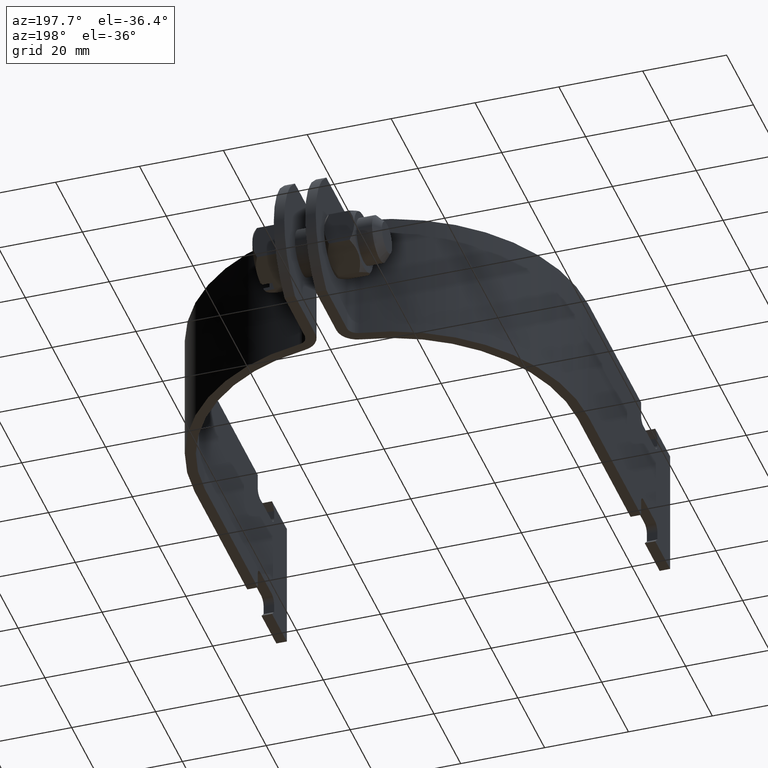
[diagram: clean part render]
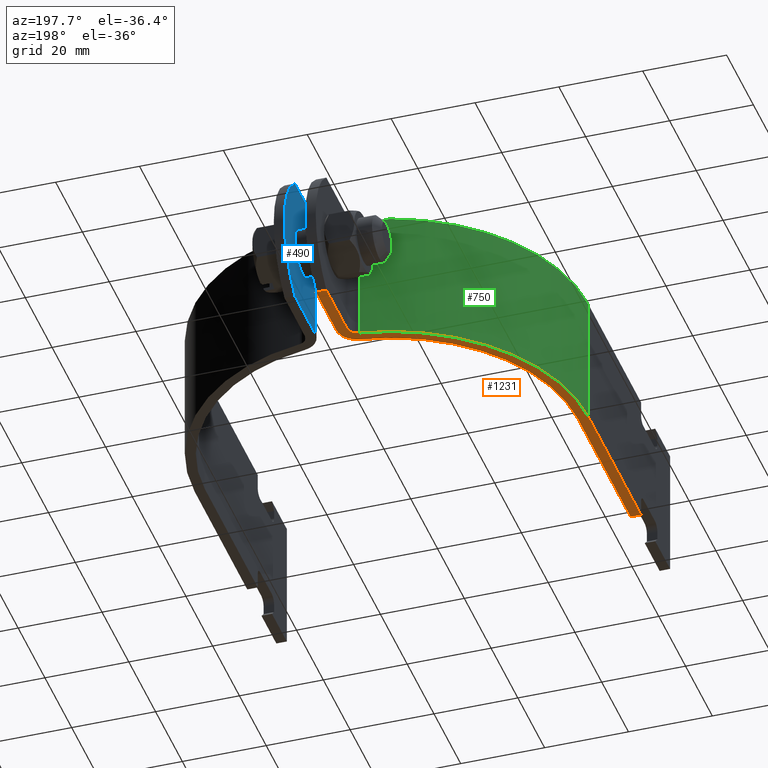
[diagram: same view with three faces highlighted in distinct colors, each labeled with its STEP entity id]
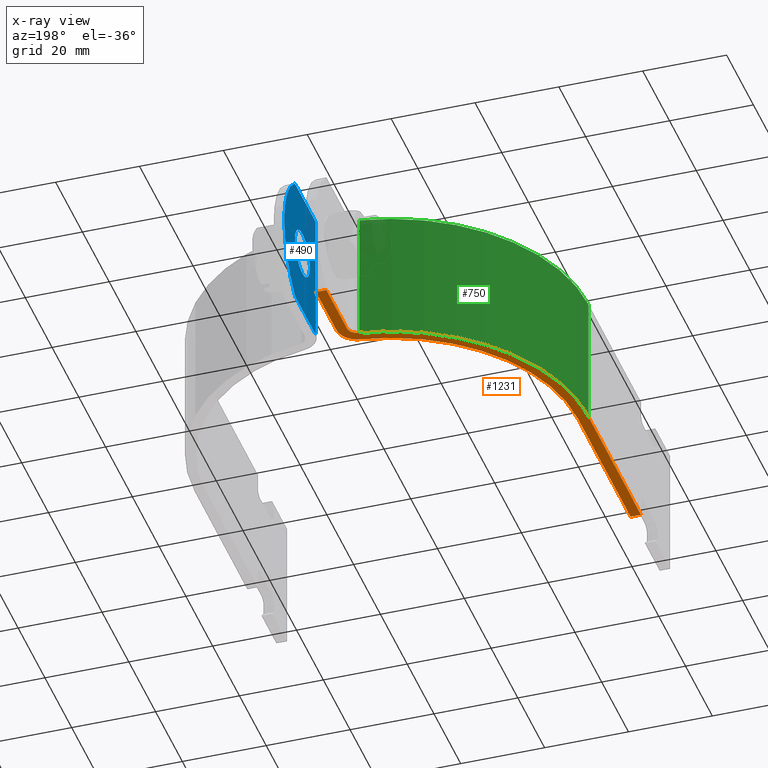
[diagram: x-ray of the same camera — body ghosted, the three highlighted faces saturated]
A machine part, auxiliary view with three faces highlighted in distinct colors.
The next image is the same camera in x-ray (body ghosted, the three faces saturated) — at least one of them is partly hidden behind the body in this view.
Their STEP definitions:

[orange] entity #1231 — the highlighted planar face has unit normal (0, 0, 1).
#61 = CIRCLE ( 'NONE', #1762, 44.45000000000001705 ) ;
#80 = DIRECTION ( 'NONE',  ( 0.000000000000000000, 0.000000000000000000, 1.000000000000000000 ) ) ;
#105 = ORIENTED_EDGE ( 'NONE', *, *, #3729, .T. ) ;
#305 = VERTEX_POINT ( 'NONE', #1012 ) ;
#334 = CARTESIAN_POINT ( 'NONE',  ( -4.999999999999996447, 41.12040011781590465, -15.87500000000000000 ) ) ;
#379 = ORIENTED_EDGE ( 'NONE', *, *, #566, .F. ) ;
#424 = EDGE_CURVE ( 'NONE', #579, #2093, #61, .T. ) ;
#468 = DIRECTION ( 'NONE',  ( 2.023784734719105571E-16, 1.000000000000000000, 0.000000000000000000 ) ) ;
#495 = DIRECTION ( 'NONE',  ( 0.000000000000000000, 0.000000000000000000, 1.000000000000000000 ) ) ;
#501 = VERTEX_POINT ( 'NONE', #2962 ) ;
#522 = ORIENTED_EDGE ( 'NONE', *, *, #2594, .T. ) ;
#566 = EDGE_CURVE ( 'NONE', #501, #1038, #2749, .T. ) ;
#579 = VERTEX_POINT ( 'NONE', #1669 ) ;
#600 = PLANE ( 'NONE',  #1516 ) ;
#651 = ORIENTED_EDGE ( 'NONE', *, *, #2331, .T. ) ;
#660 = ORIENTED_EDGE ( 'NONE', *, *, #3186, .F. ) ;
#702 = ORIENTED_EDGE ( 'NONE', *, *, #1547, .F. ) ;
#720 = AXIS2_PLACEMENT_3D ( 'NONE', #2577, #80, #1810 ) ;
#728 = CARTESIAN_POINT ( 'NONE',  ( -46.94999999999998153, -44.95799999999999130, -15.87500000000002842 ) ) ;
#804 = DIRECTION ( 'NONE',  ( 1.000000000000000000, 0.000000000000000000, 0.000000000000000000 ) ) ;
#817 = DIRECTION ( 'NONE',  ( 1.135431418813077006E-16, -1.000000000000000000, -0.000000000000000000 ) ) ;
#927 = CARTESIAN_POINT ( 'NONE',  ( -2.500000000000004885, 43.31533469450197771, -15.87500000000000000 ) ) ;
#930 = DIRECTION ( 'NONE',  ( 3.406294256439230771E-16, 1.000000000000000000, 0.000000000000000000 ) ) ;
#956 = EDGE_CURVE ( 'NONE', #2503, #305, #2741, .T. ) ;
#1012 = CARTESIAN_POINT ( 'NONE',  ( -2.500000000000001776, 58.73749999999996874, -15.87500000000000000 ) ) ;
#1018 = VECTOR ( 'NONE', #930, 1000.000000000000000 ) ;
#1023 = CIRCLE ( 'NONE', #720, 2.499999999999999556 ) ;
#1038 = VERTEX_POINT ( 'NONE', #3400 ) ;
#1056 = EDGE_CURVE ( 'NONE', #1038, #3380, #2332, .T. ) ;
#1085 = CIRCLE ( 'NONE', #1690, 5.000000000000000000 ) ;
#1095 = CARTESIAN_POINT ( 'NONE',  ( -46.94999999999997442, -66.67499999999999716, -15.87500000000000000 ) ) ;
#1128 = DIRECTION ( 'NONE',  ( 1.000000000000000000, 0.000000000000000000, 0.000000000000000000 ) ) ;
#1213 = CARTESIAN_POINT ( 'NONE',  ( -44.45000000000000284, -44.95799999999999130, -15.87500000000002842 ) ) ;
#1231 = ADVANCED_FACE ( 'NONE', ( #2408 ), #600, .F. ) ;
#1285 = VECTOR ( 'NONE', #817, 1000.000000000000000 ) ;
#1291 = CARTESIAN_POINT ( 'NONE',  ( 2.081668171172168198E-14, -5.562600000000000655, -15.87500000000000000 ) ) ;
#1326 = CARTESIAN_POINT ( 'NONE',  ( 2.081668171172168198E-14, -5.562600000000000655, -15.87500000000000000 ) ) ;
#1476 = VERTEX_POINT ( 'NONE', #1961 ) ;
#1480 = CARTESIAN_POINT ( 'NONE',  ( 2.081668171172168198E-14, -5.562600000000000655, -15.87500000000000000 ) ) ;
#1516 = AXIS2_PLACEMENT_3D ( 'NONE', #1480, #3014, #2701 ) ;
#1547 = EDGE_CURVE ( 'NONE', #1476, #3090, #2910, .T. ) ;
#1613 = ORIENTED_EDGE ( 'NONE', *, *, #956, .F. ) ;
#1669 = CARTESIAN_POINT ( 'NONE',  ( -44.44999999999999574, -5.562600000000000655, -15.87500000000000000 ) ) ;
#1690 = AXIS2_PLACEMENT_3D ( 'NONE', #2587, #3767, #1128 ) ;
#1762 = AXIS2_PLACEMENT_3D ( 'NONE', #1291, #2691, #2747 ) ;
#1763 = VERTEX_POINT ( 'NONE', #1213 ) ;
#1778 = CARTESIAN_POINT ( 'NONE',  ( -6.741658240647121936, 38.37317749586680549, -15.87500000000000000 ) ) ;
#1810 = DIRECTION ( 'NONE',  ( 1.000000000000000000, 0.000000000000000000, 0.000000000000000000 ) ) ;
#1961 = CARTESIAN_POINT ( 'NONE',  ( -4.999999999999997335, 58.73749999999996874, -15.87499999999999645 ) ) ;
#1986 = LINE ( 'NONE', #2276, #2426 ) ;
#2054 = VECTOR ( 'NONE', #3660, 1000.000000000000000 ) ;
#2093 = VERTEX_POINT ( 'NONE', #1778 ) ;
#2095 = EDGE_CURVE ( 'NONE', #1763, #579, #3554, .T. ) ;
#2276 = CARTESIAN_POINT ( 'NONE',  ( -46.94999999999998153, 58.73749999999996874, -15.87500000000000000 ) ) ;
#2331 = EDGE_CURVE ( 'NONE', #1476, #305, #1986, .T. ) ;
#2332 = LINE ( 'NONE', #1095, #1285 ) ;
#2384 = VECTOR ( 'NONE', #2929, 1000.000000000000000 ) ;
#2408 = FACE_OUTER_BOUND ( 'NONE', #3556, .T. ) ;
#2418 = ORIENTED_EDGE ( 'NONE', *, *, #2095, .F. ) ;
#2426 = VECTOR ( 'NONE', #3167, 1000.000000000000000 ) ;
#2503 = VERTEX_POINT ( 'NONE', #927 ) ;
#2577 = CARTESIAN_POINT ( 'NONE',  ( -7.499999999999997335, 43.31533469450197771, -15.87500000000000000 ) ) ;
#2587 = CARTESIAN_POINT ( 'NONE',  ( -7.500000000000005329, 43.31533469450197771, -15.87500000000000000 ) ) ;
#2594 = EDGE_CURVE ( 'NONE', #2503, #2093, #1085, .T. ) ;
#2620 = CARTESIAN_POINT ( 'NONE',  ( -4.999999999999996447, 43.31533469450197771, -15.87500000000000000 ) ) ;
#2691 = DIRECTION ( 'NONE',  ( -0.000000000000000000, -0.000000000000000000, -1.000000000000000000 ) ) ;
#2701 = DIRECTION ( 'NONE',  ( 1.000000000000000000, 0.000000000000000000, -0.000000000000000000 ) ) ;
#2732 = ORIENTED_EDGE ( 'NONE', *, *, #424, .F. ) ;
#2741 = LINE ( 'NONE', #3053, #3063 ) ;
#2747 = DIRECTION ( 'NONE',  ( 1.000000000000000000, 0.000000000000000000, 0.000000000000000000 ) ) ;
#2749 = CIRCLE ( 'NONE', #2935, 46.95000000000000284 ) ;
#2910 = LINE ( 'NONE', #334, #2384 ) ;
#2929 = DIRECTION ( 'NONE',  ( 1.357660447805488629E-16, -1.000000000000000000, -0.000000000000000000 ) ) ;
#2935 = AXIS2_PLACEMENT_3D ( 'NONE', #1326, #495, #804 ) ;
#2962 = CARTESIAN_POINT ( 'NONE',  ( -7.120829120323556971, 40.84425609518439160, -15.87500000000000000 ) ) ;
#3014 = DIRECTION ( 'NONE',  ( 0.000000000000000000, 0.000000000000000000, 1.000000000000000000 ) ) ;
#3053 = CARTESIAN_POINT ( 'NONE',  ( -2.500000000000005773, 38.81704060242040555, -15.87500000000000000 ) ) ;
#3063 = VECTOR ( 'NONE', #468, 1000.000000000000000 ) ;
#3090 = VERTEX_POINT ( 'NONE', #2620 ) ;
#3097 = ORIENTED_EDGE ( 'NONE', *, *, #1056, .F. ) ;
#3167 = DIRECTION ( 'NONE',  ( 1.000000000000000000, -0.000000000000000000, -0.000000000000000000 ) ) ;
#3186 = EDGE_CURVE ( 'NONE', #3380, #1763, #3623, .T. ) ;
#3304 = CARTESIAN_POINT ( 'NONE',  ( -44.45000000000001705, -66.67499999999999716, -15.87500000000000000 ) ) ;
#3380 = VERTEX_POINT ( 'NONE', #3795 ) ;
#3400 = CARTESIAN_POINT ( 'NONE',  ( -46.94999999999998153, -5.562599999999994438, -15.87500000000000000 ) ) ;
#3554 = LINE ( 'NONE', #3304, #1018 ) ;
#3556 = EDGE_LOOP ( 'NONE', ( #1613, #522, #2732, #2418, #660, #3097, #379, #105, #702, #651 ) ) ;
#3623 = LINE ( 'NONE', #728, #2054 ) ;
#3660 = DIRECTION ( 'NONE',  ( 1.000000000000000000, -0.000000000000000000, -0.000000000000000000 ) ) ;
#3729 = EDGE_CURVE ( 'NONE', #501, #3090, #1023, .T. ) ;
#3767 = DIRECTION ( 'NONE',  ( -0.000000000000000000, -0.000000000000000000, -1.000000000000000000 ) ) ;
#3795 = CARTESIAN_POINT ( 'NONE',  ( -46.94999999999998153, -44.95799999999999130, -15.87500000000002842 ) ) ;

[blue] entity #490 — the highlighted planar face has unit normal (1, -0, 0).
#48 = CIRCLE ( 'NONE', #604, 5.556249999999998579 ) ;
#72 = FACE_BOUND ( 'NONE', #3617, .T. ) ;
#133 = LINE ( 'NONE', #668, #3371 ) ;
#235 = AXIS2_PLACEMENT_3D ( 'NONE', #895, #302, #560 ) ;
#251 = DIRECTION ( 'NONE',  ( 1.000000000000000000, -1.245405990596371389E-16, 0.000000000000000000 ) ) ;
#265 = LINE ( 'NONE', #551, #3236 ) ;
#294 = VERTEX_POINT ( 'NONE', #1036 ) ;
#302 = DIRECTION ( 'NONE',  ( -1.000000000000000000, 1.245405990596371389E-16, -0.000000000000000000 ) ) ;
#381 = CARTESIAN_POINT ( 'NONE',  ( 2.499999999999996447, 38.81704060242037713, 15.87500000000000000 ) ) ;
#436 = CIRCLE ( 'NONE', #3313, 5.556249999999998579 ) ;
#447 = EDGE_CURVE ( 'NONE', #2032, #294, #133, .T. ) ;
#490 = ADVANCED_FACE ( 'NONE', ( #72, #1799 ), #3006, .F. ) ;
#551 = CARTESIAN_POINT ( 'NONE',  ( 2.499999999999996447, 38.81704060242037713, 15.87500000000000000 ) ) ;
#560 = DIRECTION ( 'NONE',  ( 1.311287036958849155E-16, 1.000000000000000000, 0.000000000000000000 ) ) ;
#604 = AXIS2_PLACEMENT_3D ( 'NONE', #755, #3049, #3645 ) ;
#668 = CARTESIAN_POINT ( 'NONE',  ( 2.499999999999996447, 38.81704060242037713, -15.87500000000000000 ) ) ;
#680 = EDGE_CURVE ( 'NONE', #1253, #2146, #265, .T. ) ;
#687 = EDGE_LOOP ( 'NONE', ( #1797, #2001, #3003, #1300 ) ) ;
#755 = CARTESIAN_POINT ( 'NONE',  ( 2.499999999999995115, 53.18124999999997726, -9.720633968232098440E-16 ) ) ;
#788 = DIRECTION ( 'NONE',  ( 1.561055996379579228E-16, 1.000000000000000000, 0.000000000000000000 ) ) ;
#876 = DIRECTION ( 'NONE',  ( -1.245405990596371389E-16, -1.000000000000000000, -0.000000000000000000 ) ) ;
#895 = CARTESIAN_POINT ( 'NONE',  ( 2.499999999999995115, 46.83125000000003979, 2.011351856718805931E-15 ) ) ;
#1036 = CARTESIAN_POINT ( 'NONE',  ( 2.499999999999996891, 43.31533469450196350, -15.87500000000000000 ) ) ;
#1158 = AXIS2_PLACEMENT_3D ( 'NONE', #381, #1548, #1530 ) ;
#1240 = CARTESIAN_POINT ( 'NONE',  ( 2.499999999999996891, 43.31533469450196350, 15.87500000000000000 ) ) ;
#1246 = ORIENTED_EDGE ( 'NONE', *, *, #1439, .T. ) ;
#1253 = VERTEX_POINT ( 'NONE', #2974 ) ;
#1269 = DIRECTION ( 'NONE',  ( -1.245405990596371389E-16, -1.000000000000000000, -0.000000000000000000 ) ) ;
#1300 = ORIENTED_EDGE ( 'NONE', *, *, #2996, .T. ) ;
#1439 = EDGE_CURVE ( 'NONE', #2182, #3263, #436, .T. ) ;
#1462 = ORIENTED_EDGE ( 'NONE', *, *, #2833, .T. ) ;
#1526 = CARTESIAN_POINT ( 'NONE',  ( 2.499999999999995115, 58.73749999999996874, -15.87499999999999645 ) ) ;
#1530 = DIRECTION ( 'NONE',  ( 1.245405990596371389E-16, 1.000000000000000000, 0.000000000000000000 ) ) ;
#1548 = DIRECTION ( 'NONE',  ( 1.000000000000000000, -1.245405990596371389E-16, 0.000000000000000000 ) ) ;
#1797 = ORIENTED_EDGE ( 'NONE', *, *, #447, .T. ) ;
#1799 = FACE_OUTER_BOUND ( 'NONE', #687, .T. ) ;
#1930 = CARTESIAN_POINT ( 'NONE',  ( 2.499999999999996891, 43.31533469450196350, 15.87500000000000000 ) ) ;
#2001 = ORIENTED_EDGE ( 'NONE', *, *, #3753, .T. ) ;
#2032 = VERTEX_POINT ( 'NONE', #1526 ) ;
#2146 = VERTEX_POINT ( 'NONE', #1930 ) ;
#2168 = CARTESIAN_POINT ( 'NONE',  ( 2.499999999999995115, 53.18124999999997726, 5.556250000000000355 ) ) ;
#2182 = VERTEX_POINT ( 'NONE', #3089 ) ;
#2407 = LINE ( 'NONE', #1240, #2919 ) ;
#2833 = EDGE_CURVE ( 'NONE', #3263, #2182, #48, .T. ) ;
#2919 = VECTOR ( 'NONE', #3588, 1000.000000000000000 ) ;
#2974 = CARTESIAN_POINT ( 'NONE',  ( 2.499999999999995115, 58.73749999999996874, 15.87500000000000355 ) ) ;
#2996 = EDGE_CURVE ( 'NONE', #1253, #2032, #3790, .T. ) ;
#3003 = ORIENTED_EDGE ( 'NONE', *, *, #680, .F. ) ;
#3006 = PLANE ( 'NONE',  #1158 ) ;
#3049 = DIRECTION ( 'NONE',  ( 1.000000000000000000, -1.245405990596371389E-16, 0.000000000000000000 ) ) ;
#3089 = CARTESIAN_POINT ( 'NONE',  ( 2.499999999999995115, 53.18124999999997726, -5.556250000000002132 ) ) ;
#3096 = CARTESIAN_POINT ( 'NONE',  ( 2.499999999999995115, 53.18124999999997726, -9.720633968232098440E-16 ) ) ;
#3236 = VECTOR ( 'NONE', #876, 1000.000000000000000 ) ;
#3263 = VERTEX_POINT ( 'NONE', #2168 ) ;
#3313 = AXIS2_PLACEMENT_3D ( 'NONE', #3096, #251, #788 ) ;
#3371 = VECTOR ( 'NONE', #1269, 1000.000000000000000 ) ;
#3588 = DIRECTION ( 'NONE',  ( -0.000000000000000000, -0.000000000000000000, 1.000000000000000000 ) ) ;
#3617 = EDGE_LOOP ( 'NONE', ( #1246, #1462 ) ) ;
#3645 = DIRECTION ( 'NONE',  ( 1.561055996379579228E-16, 1.000000000000000000, 0.000000000000000000 ) ) ;
#3753 = EDGE_CURVE ( 'NONE', #294, #2146, #2407, .T. ) ;
#3790 = CIRCLE ( 'NONE', #235, 19.84374999999995737 ) ;

[green] entity #750 — the highlighted cylindrical surface (partial cylindrical patch) has radius 46.95 mm, axis along (-0, -0, -1).
#163 = EDGE_CURVE ( 'NONE', #2546, #1261, #1273, .T. ) ;
#495 = DIRECTION ( 'NONE',  ( 0.000000000000000000, 0.000000000000000000, 1.000000000000000000 ) ) ;
#501 = VERTEX_POINT ( 'NONE', #2962 ) ;
#509 = ORIENTED_EDGE ( 'NONE', *, *, #566, .T. ) ;
#566 = EDGE_CURVE ( 'NONE', #501, #1038, #2749, .T. ) ;
#572 = DIRECTION ( 'NONE',  ( -1.000000000000000000, 0.000000000000000000, 0.000000000000000000 ) ) ;
#593 = CARTESIAN_POINT ( 'NONE',  ( -46.94999999999998153, -5.562599999999994438, 15.87500000000000000 ) ) ;
#624 = ORIENTED_EDGE ( 'NONE', *, *, #3061, .F. ) ;
#711 = LINE ( 'NONE', #959, #3225 ) ;
#750 = ADVANCED_FACE ( 'NONE', ( #2297 ), #3773, .T. ) ;
#804 = DIRECTION ( 'NONE',  ( 1.000000000000000000, 0.000000000000000000, 0.000000000000000000 ) ) ;
#830 = CARTESIAN_POINT ( 'NONE',  ( -7.120829120323556971, 40.84425609518439160, 15.87500000000000000 ) ) ;
#862 = AXIS2_PLACEMENT_3D ( 'NONE', #1133, #3193, #572 ) ;
#959 = CARTESIAN_POINT ( 'NONE',  ( -7.120829120323556083, 40.84425609518439160, 15.87500000000000000 ) ) ;
#1038 = VERTEX_POINT ( 'NONE', #3400 ) ;
#1133 = CARTESIAN_POINT ( 'NONE',  ( 2.081668171172168198E-14, -5.562600000000000655, 15.87500000000000000 ) ) ;
#1261 = VERTEX_POINT ( 'NONE', #3609 ) ;
#1273 = CIRCLE ( 'NONE', #1398, 46.95000000000000284 ) ;
#1326 = CARTESIAN_POINT ( 'NONE',  ( 2.081668171172168198E-14, -5.562600000000000655, -15.87500000000000000 ) ) ;
#1398 = AXIS2_PLACEMENT_3D ( 'NONE', #2716, #1553, #2077 ) ;
#1553 = DIRECTION ( 'NONE',  ( 0.000000000000000000, 0.000000000000000000, 1.000000000000000000 ) ) ;
#2077 = DIRECTION ( 'NONE',  ( 1.000000000000000000, 0.000000000000000000, 0.000000000000000000 ) ) ;
#2116 = DIRECTION ( 'NONE',  ( -0.000000000000000000, -0.000000000000000000, -1.000000000000000000 ) ) ;
#2297 = FACE_OUTER_BOUND ( 'NONE', #2995, .T. ) ;
#2546 = VERTEX_POINT ( 'NONE', #830 ) ;
#2601 = DIRECTION ( 'NONE',  ( -0.000000000000000000, -0.000000000000000000, -1.000000000000000000 ) ) ;
#2618 = VECTOR ( 'NONE', #2601, 1000.000000000000000 ) ;
#2716 = CARTESIAN_POINT ( 'NONE',  ( 2.081668171172168198E-14, -5.562600000000000655, 15.87500000000000000 ) ) ;
#2749 = CIRCLE ( 'NONE', #2935, 46.95000000000000284 ) ;
#2779 = EDGE_CURVE ( 'NONE', #2546, #501, #711, .T. ) ;
#2935 = AXIS2_PLACEMENT_3D ( 'NONE', #1326, #495, #804 ) ;
#2962 = CARTESIAN_POINT ( 'NONE',  ( -7.120829120323556971, 40.84425609518439160, -15.87500000000000000 ) ) ;
#2995 = EDGE_LOOP ( 'NONE', ( #3094, #3065, #509, #624 ) ) ;
#3061 = EDGE_CURVE ( 'NONE', #1261, #1038, #3522, .T. ) ;
#3065 = ORIENTED_EDGE ( 'NONE', *, *, #2779, .T. ) ;
#3094 = ORIENTED_EDGE ( 'NONE', *, *, #163, .F. ) ;
#3193 = DIRECTION ( 'NONE',  ( -0.000000000000000000, -0.000000000000000000, -1.000000000000000000 ) ) ;
#3225 = VECTOR ( 'NONE', #2116, 1000.000000000000000 ) ;
#3400 = CARTESIAN_POINT ( 'NONE',  ( -46.94999999999998153, -5.562599999999994438, -15.87500000000000000 ) ) ;
#3522 = LINE ( 'NONE', #593, #2618 ) ;
#3609 = CARTESIAN_POINT ( 'NONE',  ( -46.94999999999998153, -5.562599999999994438, 15.87500000000000000 ) ) ;
#3773 = CYLINDRICAL_SURFACE ( 'NONE', #862, 46.95000000000000284 ) ;